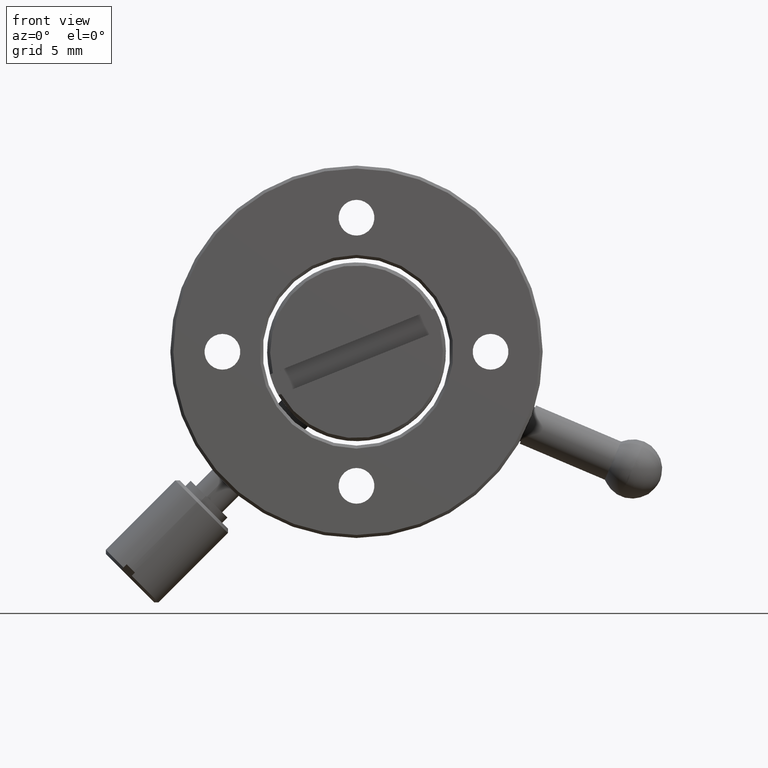
[diagram: clean part render]
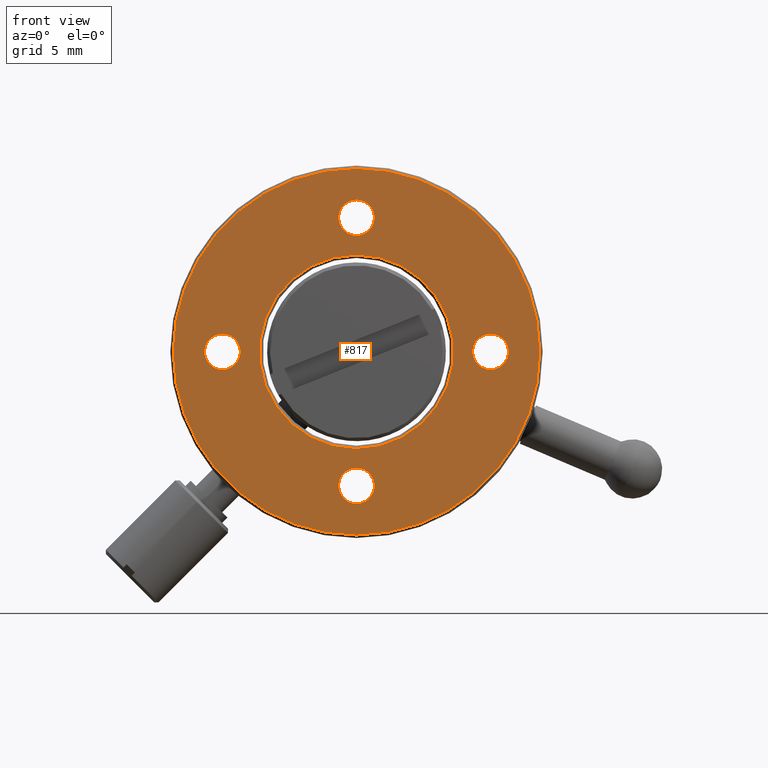
[diagram: same view with one face highlighted and labeled with its STEP entity id]
A machine part, front view. The second image highlights one B-rep face of the part: STEP entity #817.
In plain terms, the highlighted planar face has unit normal (0, -1, 0).
Its self-contained STEP definition (entity closure, byte-faithful):
#19 = DIRECTION ( 'NONE',  ( 0.000000000000000000, 0.000000000000000000, 1.000000000000000000 ) ) ;
#36 = CIRCLE ( 'NONE', #1281, 12.30000000000000249 ) ;
#115 = ORIENTED_EDGE ( 'NONE', *, *, #431, .T. ) ;
#129 = CIRCLE ( 'NONE', #520, 1.200000000000007505 ) ;
#138 = CARTESIAN_POINT ( 'NONE',  ( -1.734723475976807094E-15, -0.07999999999999847511, 0.000000000000000000 ) ) ;
#233 = EDGE_CURVE ( 'NONE', #2658, #2276, #129, .T. ) ;
#240 = CIRCLE ( 'NONE', #1381, 12.30000000000000249 ) ;
#244 = CIRCLE ( 'NONE', #852, 1.200000000000008393 ) ;
#259 = DIRECTION ( 'NONE',  ( -0.000000000000000000, 1.000000000000000000, -0.000000000000000000 ) ) ;
#260 = CARTESIAN_POINT ( 'NONE',  ( -6.325413567441893805E-16, -0.08000000000000541400, 10.20000000000001172 ) ) ;
#265 = VERTEX_POINT ( 'NONE', #1689 ) ;
#291 = CARTESIAN_POINT ( 'NONE',  ( 5.852755528864883280E-16, -0.08000000000000541400, -10.20000000000001172 ) ) ;
#301 = EDGE_LOOP ( 'NONE', ( #2431, #2159 ) ) ;
#344 = DIRECTION ( 'NONE',  ( 0.000000000000000000, 0.000000000000000000, 1.000000000000000000 ) ) ;
#395 = AXIS2_PLACEMENT_3D ( 'NONE', #2726, #2241, #19 ) ;
#422 = FACE_BOUND ( 'NONE', #301, .T. ) ;
#431 = EDGE_CURVE ( 'NONE', #2685, #3129, #2889, .T. ) ;
#487 = VERTEX_POINT ( 'NONE', #717 ) ;
#499 = CARTESIAN_POINT ( 'NONE',  ( 9.000000000000001776, -0.08000000000000541400, 2.168404344971008868E-16 ) ) ;
#513 = VERTEX_POINT ( 'NONE', #2213 ) ;
#520 = AXIS2_PLACEMENT_3D ( 'NONE', #865, #1864, #1901 ) ;
#598 = AXIS2_PLACEMENT_3D ( 'NONE', #2171, #693, #1906 ) ;
#693 = DIRECTION ( 'NONE',  ( -0.000000000000000000, 1.000000000000000000, -0.000000000000000000 ) ) ;
#695 = AXIS2_PLACEMENT_3D ( 'NONE', #2472, #259, #2940 ) ;
#717 = CARTESIAN_POINT ( 'NONE',  ( -9.387030565310256732E-16, -0.07999999999999847511, 6.500000000000015987 ) ) ;
#742 = DIRECTION ( 'NONE',  ( 0.000000000000000000, 0.000000000000000000, -1.000000000000000000 ) ) ;
#748 = CIRCLE ( 'NONE', #1938, 1.200000000000007505 ) ;
#770 = DIRECTION ( 'NONE',  ( 0.000000000000000000, 0.000000000000000000, 1.000000000000000000 ) ) ;
#787 = DIRECTION ( 'NONE',  ( 0.000000000000000000, -1.000000000000000000, 0.000000000000000000 ) ) ;
#817 = ADVANCED_FACE ( 'NONE', ( #869, #1159, #2105, #3074, #2837, #422 ), #3102, .T. ) ;
#846 = CIRCLE ( 'NONE', #395, 1.200000000000006617 ) ;
#852 = AXIS2_PLACEMENT_3D ( 'NONE', #2300, #2823, #853 ) ;
#853 = DIRECTION ( 'NONE',  ( 0.000000000000000000, 0.000000000000000000, 1.000000000000000000 ) ) ;
#865 = CARTESIAN_POINT ( 'NONE',  ( 4.383179369888048387E-16, -0.08000000000000541400, -9.000000000000003553 ) ) ;
#869 = FACE_BOUND ( 'NONE', #1425, .T. ) ;
#883 = DIRECTION ( 'NONE',  ( 0.000000000000000000, 0.000000000000000000, -1.000000000000000000 ) ) ;
#888 = DIRECTION ( 'NONE',  ( -0.000000000000000000, 1.000000000000000000, -0.000000000000000000 ) ) ;
#899 = EDGE_CURVE ( 'NONE', #2427, #487, #1213, .T. ) ;
#952 = ORIENTED_EDGE ( 'NONE', *, *, #2400, .T. ) ;
#1010 = AXIS2_PLACEMENT_3D ( 'NONE', #2669, #3127, #1656 ) ;
#1022 = ORIENTED_EDGE ( 'NONE', *, *, #2319, .T. ) ;
#1027 = VERTEX_POINT ( 'NONE', #1532 ) ;
#1039 = EDGE_LOOP ( 'NONE', ( #1228, #2172 ) ) ;
#1065 = AXIS2_PLACEMENT_3D ( 'NONE', #499, #2931, #770 ) ;
#1068 = ORIENTED_EDGE ( 'NONE', *, *, #1201, .T. ) ;
#1099 = CARTESIAN_POINT ( 'NONE',  ( 9.000000000000001776, -0.08000000000000541400, 1.200000000000006839 ) ) ;
#1130 = ORIENTED_EDGE ( 'NONE', *, *, #899, .T. ) ;
#1142 = DIRECTION ( 'NONE',  ( 0.000000000000000000, 0.000000000000000000, -1.000000000000000000 ) ) ;
#1159 = FACE_OUTER_BOUND ( 'NONE', #1039, .T. ) ;
#1201 = EDGE_CURVE ( 'NONE', #2276, #2658, #748, .T. ) ;
#1213 = CIRCLE ( 'NONE', #3151, 6.500000000000015987 ) ;
#1228 = ORIENTED_EDGE ( 'NONE', *, *, #2282, .T. ) ;
#1267 = EDGE_CURVE ( 'NONE', #1853, #1027, #240, .T. ) ;
#1281 = AXIS2_PLACEMENT_3D ( 'NONE', #1771, #787, #742 ) ;
#1335 = DIRECTION ( 'NONE',  ( -0.000000000000000000, 1.000000000000000000, -0.000000000000000000 ) ) ;
#1363 = EDGE_CURVE ( 'NONE', #487, #2427, #2349, .T. ) ;
#1381 = AXIS2_PLACEMENT_3D ( 'NONE', #138, #3085, #883 ) ;
#1404 = EDGE_CURVE ( 'NONE', #513, #2442, #846, .T. ) ;
#1415 = VERTEX_POINT ( 'NONE', #2956 ) ;
#1425 = EDGE_LOOP ( 'NONE', ( #1130, #2536 ) ) ;
#1451 = CARTESIAN_POINT ( 'NONE',  ( -1.734723475976807094E-15, -0.07999999999999847511, 2.168404344971008868E-16 ) ) ;
#1532 = CARTESIAN_POINT ( 'NONE',  ( -1.734723475976807094E-15, -0.07999999999999847511, 12.30000000000000249 ) ) ;
#1580 = CARTESIAN_POINT ( 'NONE',  ( 4.383179369888048387E-16, -0.08000000000000541400, -9.000000000000003553 ) ) ;
#1606 = EDGE_CURVE ( 'NONE', #1415, #265, #1673, .T. ) ;
#1656 = DIRECTION ( 'NONE',  ( 0.000000000000000000, -0.000000000000000000, -1.000000000000000000 ) ) ;
#1673 = CIRCLE ( 'NONE', #2740, 1.200000000000007505 ) ;
#1689 = CARTESIAN_POINT ( 'NONE',  ( -9.000000000000005329, -0.08000000000000541400, -1.200000000000007283 ) ) ;
#1771 = CARTESIAN_POINT ( 'NONE',  ( -1.734723475976807094E-15, -0.07999999999999847511, 0.000000000000000000 ) ) ;
#1853 = VERTEX_POINT ( 'NONE', #1996 ) ;
#1864 = DIRECTION ( 'NONE',  ( -0.000000000000000000, 1.000000000000000000, -0.000000000000000000 ) ) ;
#1901 = DIRECTION ( 'NONE',  ( 0.000000000000000000, 0.000000000000000000, 1.000000000000000000 ) ) ;
#1904 = DIRECTION ( 'NONE',  ( -0.000000000000000000, 1.000000000000000000, -0.000000000000000000 ) ) ;
#1906 = DIRECTION ( 'NONE',  ( 0.000000000000000000, 0.000000000000000000, 1.000000000000000000 ) ) ;
#1925 = AXIS2_PLACEMENT_3D ( 'NONE', #3103, #888, #2121 ) ;
#1938 = AXIS2_PLACEMENT_3D ( 'NONE', #1580, #2552, #344 ) ;
#1992 = EDGE_LOOP ( 'NONE', ( #1068, #2335 ) ) ;
#1996 = CARTESIAN_POINT ( 'NONE',  ( -2.161614450340889795E-16, -0.07999999999999847511, -12.30000000000000249 ) ) ;
#2069 = CARTESIAN_POINT ( 'NONE',  ( -1.734723475976807094E-15, -0.07999999999999847511, -6.500000000000015987 ) ) ;
#2100 = EDGE_LOOP ( 'NONE', ( #115, #952 ) ) ;
#2105 = FACE_BOUND ( 'NONE', #2100, .T. ) ;
#2121 = DIRECTION ( 'NONE',  ( 0.000000000000000000, 0.000000000000000000, 1.000000000000000000 ) ) ;
#2126 = EDGE_CURVE ( 'NONE', #265, #1415, #2711, .T. ) ;
#2159 = ORIENTED_EDGE ( 'NONE', *, *, #2126, .T. ) ;
#2171 = CARTESIAN_POINT ( 'NONE',  ( -9.000000000000005329, -0.08000000000000541400, 2.168404344971008868E-16 ) ) ;
#2172 = ORIENTED_EDGE ( 'NONE', *, *, #1267, .T. ) ;
#2199 = CIRCLE ( 'NONE', #1065, 1.200000000000006617 ) ;
#2202 = CARTESIAN_POINT ( 'NONE',  ( 4.383179369888048387E-16, -0.08000000000000541400, -7.799999999999995381 ) ) ;
#2213 = CARTESIAN_POINT ( 'NONE',  ( 9.000000000000001776, -0.08000000000000541400, -1.200000000000006617 ) ) ;
#2241 = DIRECTION ( 'NONE',  ( -0.000000000000000000, 1.000000000000000000, -0.000000000000000000 ) ) ;
#2276 = VERTEX_POINT ( 'NONE', #2202 ) ;
#2282 = EDGE_CURVE ( 'NONE', #1027, #1853, #36, .T. ) ;
#2300 = CARTESIAN_POINT ( 'NONE',  ( -6.325413567441893805E-16, -0.08000000000000541400, 9.000000000000003553 ) ) ;
#2319 = EDGE_CURVE ( 'NONE', #2442, #513, #2199, .T. ) ;
#2335 = ORIENTED_EDGE ( 'NONE', *, *, #233, .T. ) ;
#2349 = CIRCLE ( 'NONE', #695, 6.500000000000015987 ) ;
#2400 = EDGE_CURVE ( 'NONE', #3129, #2685, #244, .T. ) ;
#2427 = VERTEX_POINT ( 'NONE', #2069 ) ;
#2431 = ORIENTED_EDGE ( 'NONE', *, *, #1606, .T. ) ;
#2442 = VERTEX_POINT ( 'NONE', #1099 ) ;
#2472 = CARTESIAN_POINT ( 'NONE',  ( -1.734723475976807094E-15, -0.07999999999999847511, 2.168404344971008868E-16 ) ) ;
#2530 = CARTESIAN_POINT ( 'NONE',  ( -9.000000000000005329, -0.08000000000000541400, 2.168404344971008868E-16 ) ) ;
#2536 = ORIENTED_EDGE ( 'NONE', *, *, #1363, .T. ) ;
#2552 = DIRECTION ( 'NONE',  ( -0.000000000000000000, 1.000000000000000000, -0.000000000000000000 ) ) ;
#2562 = DIRECTION ( 'NONE',  ( 0.000000000000000000, 0.000000000000000000, 1.000000000000000000 ) ) ;
#2658 = VERTEX_POINT ( 'NONE', #291 ) ;
#2669 = CARTESIAN_POINT ( 'NONE',  ( -1.734723475976807094E-15, -0.07999999999999847511, 0.000000000000000000 ) ) ;
#2685 = VERTEX_POINT ( 'NONE', #260 ) ;
#2688 = CARTESIAN_POINT ( 'NONE',  ( -4.855837408465060392E-16, -0.08000000000000541400, 7.799999999999995381 ) ) ;
#2711 = CIRCLE ( 'NONE', #598, 1.200000000000007505 ) ;
#2726 = CARTESIAN_POINT ( 'NONE',  ( 9.000000000000001776, -0.08000000000000541400, 2.168404344971008868E-16 ) ) ;
#2740 = AXIS2_PLACEMENT_3D ( 'NONE', #2530, #1335, #2562 ) ;
#2823 = DIRECTION ( 'NONE',  ( -0.000000000000000000, 1.000000000000000000, -0.000000000000000000 ) ) ;
#2837 = FACE_BOUND ( 'NONE', #3048, .T. ) ;
#2889 = CIRCLE ( 'NONE', #1925, 1.200000000000008393 ) ;
#2931 = DIRECTION ( 'NONE',  ( -0.000000000000000000, 1.000000000000000000, -0.000000000000000000 ) ) ;
#2940 = DIRECTION ( 'NONE',  ( 0.000000000000000000, 0.000000000000000000, -1.000000000000000000 ) ) ;
#2956 = CARTESIAN_POINT ( 'NONE',  ( -9.000000000000005329, -0.08000000000000541400, 1.200000000000007727 ) ) ;
#3007 = ORIENTED_EDGE ( 'NONE', *, *, #1404, .T. ) ;
#3048 = EDGE_LOOP ( 'NONE', ( #1022, #3007 ) ) ;
#3074 = FACE_BOUND ( 'NONE', #1992, .T. ) ;
#3085 = DIRECTION ( 'NONE',  ( 0.000000000000000000, -1.000000000000000000, 0.000000000000000000 ) ) ;
#3102 = PLANE ( 'NONE',  #1010 ) ;
#3103 = CARTESIAN_POINT ( 'NONE',  ( -6.325413567441893805E-16, -0.08000000000000541400, 9.000000000000003553 ) ) ;
#3127 = DIRECTION ( 'NONE',  ( 0.000000000000000000, -1.000000000000000000, 0.000000000000000000 ) ) ;
#3129 = VERTEX_POINT ( 'NONE', #2688 ) ;
#3151 = AXIS2_PLACEMENT_3D ( 'NONE', #1451, #1904, #1142 ) ;